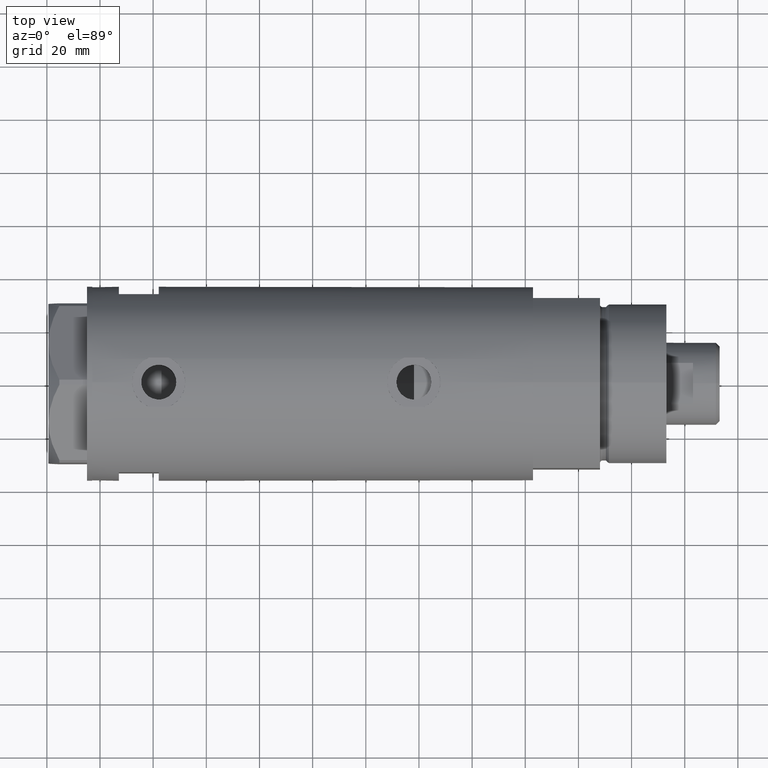
[diagram: clean part render]
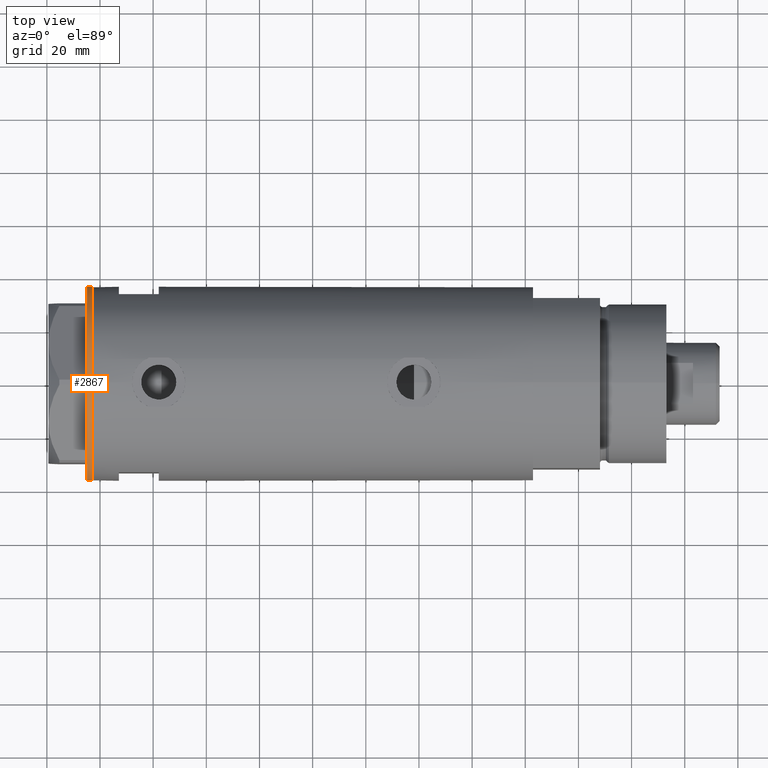
[diagram: same view with one face highlighted and labeled with its STEP entity id]
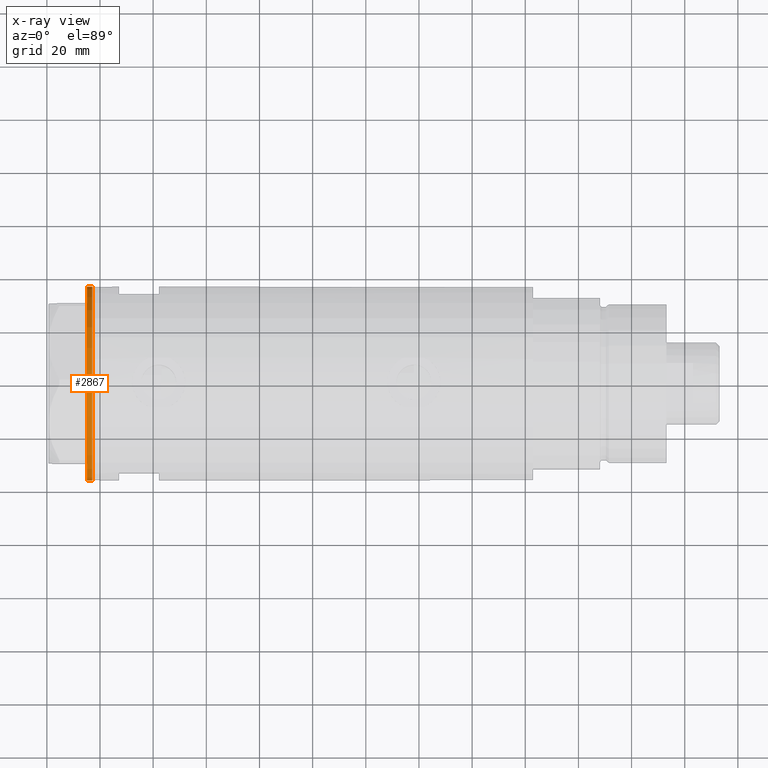
[diagram: x-ray of the same camera — body ghosted, the highlighted face saturated]
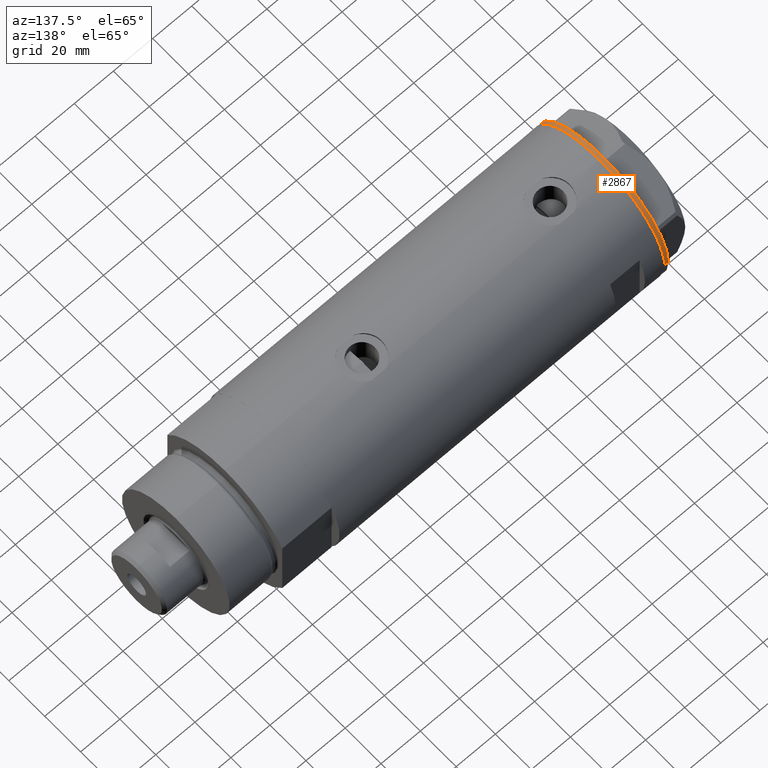
[diagram: same view with one face highlighted and labeled with its STEP entity id]
A machine part, top view. The second image highlights one B-rep face of the part: STEP entity #2867.
The next image is the same camera in x-ray: the body ghosted, the highlighted face saturated — about 0% of this face is hidden behind the body in this view.
A second angle (auxiliary view) of the same face is appended — the face is thin or edge-on in the first view.
In plain terms, the highlighted cylindrical surface (partial cylindrical patch) has radius 36.5 mm, axis along (-1, -0, 0).
Its self-contained STEP definition (entity closure, byte-faithful):
#109 = AXIS2_PLACEMENT_3D ( 'NONE', #349, #4469, #1021 ) ;
#222 = CARTESIAN_POINT ( 'NONE',  ( 36.50000000000000000, 0.000000000000000000, 0.000000000000000000 ) ) ;
#349 = CARTESIAN_POINT ( 'NONE',  ( 0.000000000000000000, 0.000000000000000000, -2.000000000000000000 ) ) ;
#607 = VERTEX_POINT ( 'NONE', #4021 ) ;
#672 = VERTEX_POINT ( 'NONE', #222 ) ;
#681 = CARTESIAN_POINT ( 'NONE',  ( -36.50000000000000000, 4.469960816887838430E-15, -2.000000000000000000 ) ) ;
#810 = EDGE_CURVE ( 'NONE', #2493, #1722, #2488, .T. ) ;
#1003 = EDGE_CURVE ( 'NONE', #672, #607, #1033, .T. ) ;
#1021 = DIRECTION ( 'NONE',  ( 1.000000000000000000, 0.000000000000000000, 0.000000000000000000 ) ) ;
#1033 = CIRCLE ( 'NONE', #1334, 36.50000000000000000 ) ;
#1129 = ORIENTED_EDGE ( 'NONE', *, *, #810, .F. ) ;
#1186 = DIRECTION ( 'NONE',  ( 0.000000000000000000, 0.000000000000000000, -1.000000000000000000 ) ) ;
#1260 = AXIS2_PLACEMENT_3D ( 'NONE', #4452, #2741, #4119 ) ;
#1299 = ORIENTED_EDGE ( 'NONE', *, *, #2354, .T. ) ;
#1334 = AXIS2_PLACEMENT_3D ( 'NONE', #3291, #1186, #3228 ) ;
#1375 = CARTESIAN_POINT ( 'NONE',  ( 36.50000000000000000, 0.000000000000000000, -2.000000000000000000 ) ) ;
#1483 = VECTOR ( 'NONE', #3074, 1000.000000000000000 ) ;
#1487 = ORIENTED_EDGE ( 'NONE', *, *, #1003, .T. ) ;
#1523 = LINE ( 'NONE', #4239, #3280 ) ;
#1722 = VERTEX_POINT ( 'NONE', #681 ) ;
#1919 = EDGE_CURVE ( 'NONE', #1722, #607, #1523, .T. ) ;
#2354 = EDGE_CURVE ( 'NONE', #2493, #672, #3345, .T. ) ;
#2459 = FACE_OUTER_BOUND ( 'NONE', #2761, .T. ) ;
#2488 = CIRCLE ( 'NONE', #1260, 36.50000000000000000 ) ;
#2493 = VERTEX_POINT ( 'NONE', #3161 ) ;
#2741 = DIRECTION ( 'NONE',  ( 0.000000000000000000, 0.000000000000000000, -1.000000000000000000 ) ) ;
#2761 = EDGE_LOOP ( 'NONE', ( #3482, #1129, #1299, #1487 ) ) ;
#2867 = ADVANCED_FACE ( 'NONE', ( #2459 ), #3494, .T. ) ;
#3074 = DIRECTION ( 'NONE',  ( -0.000000000000000000, -0.000000000000000000, 1.000000000000000000 ) ) ;
#3161 = CARTESIAN_POINT ( 'NONE',  ( 36.50000000000000000, 0.000000000000000000, -2.000000000000000000 ) ) ;
#3228 = DIRECTION ( 'NONE',  ( -1.000000000000000000, 0.000000000000000000, 0.000000000000000000 ) ) ;
#3280 = VECTOR ( 'NONE', #4276, 1000.000000000000000 ) ;
#3291 = CARTESIAN_POINT ( 'NONE',  ( 0.000000000000000000, 0.000000000000000000, 0.000000000000000000 ) ) ;
#3345 = LINE ( 'NONE', #1375, #1483 ) ;
#3482 = ORIENTED_EDGE ( 'NONE', *, *, #1919, .F. ) ;
#3494 = CYLINDRICAL_SURFACE ( 'NONE', #109, 36.50000000000000000 ) ;
#4021 = CARTESIAN_POINT ( 'NONE',  ( -36.50000000000000000, 4.469960816887838430E-15, 0.000000000000000000 ) ) ;
#4119 = DIRECTION ( 'NONE',  ( -1.000000000000000000, 0.000000000000000000, 0.000000000000000000 ) ) ;
#4239 = CARTESIAN_POINT ( 'NONE',  ( -36.50000000000000000, 4.469960816887838430E-15, -2.000000000000000000 ) ) ;
#4276 = DIRECTION ( 'NONE',  ( -0.000000000000000000, -0.000000000000000000, 1.000000000000000000 ) ) ;
#4452 = CARTESIAN_POINT ( 'NONE',  ( 0.000000000000000000, 0.000000000000000000, -2.000000000000000000 ) ) ;
#4469 = DIRECTION ( 'NONE',  ( -0.000000000000000000, -0.000000000000000000, 1.000000000000000000 ) ) ;